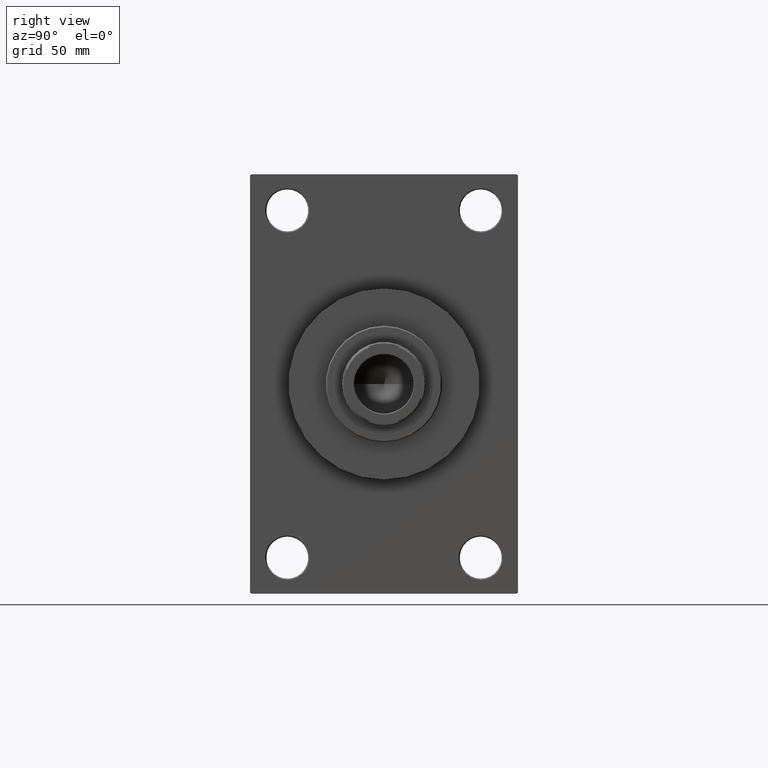
[diagram: clean part render]
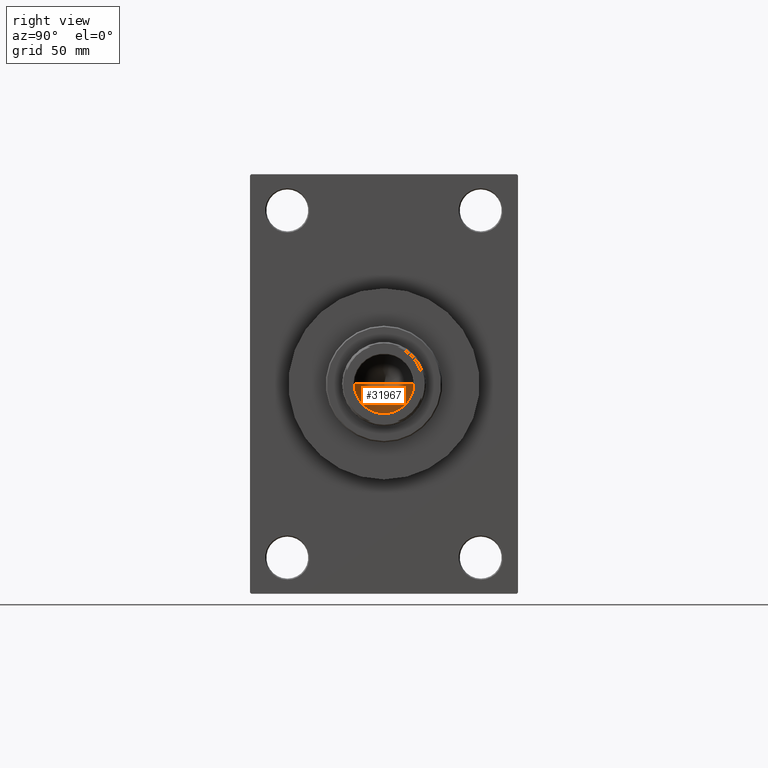
[diagram: same view with one face highlighted and labeled with its STEP entity id]
A machine part, right view. The second image highlights one B-rep face of the part: STEP entity #31967.
In plain terms, the highlighted conical surface has half-angle 59 deg.
Its self-contained STEP definition (entity closure, byte-faithful):
#47 = CIRCLE ( 'NONE', #31622, 12.74999999999998934 ) ;
#216 = VERTEX_POINT ( 'NONE', #38743 ) ;
#945 = VECTOR ( 'NONE', #3712, 1000.000000000000000 ) ;
#3712 = DIRECTION ( 'NONE',  ( 0.8571673007021117785, 0.000000000000000000, 0.5150380749100550437 ) ) ;
#9446 = DIRECTION ( 'NONE',  ( -0.8571673007021117785, 1.049727191138617956E-16, 0.5150380749100550437 ) ) ;
#16182 = EDGE_CURVE ( 'NONE', #216, #32063, #47, .T. ) ;
#16518 = ORIENTED_EDGE ( 'NONE', *, *, #16182, .T. ) ;
#17881 = CARTESIAN_POINT ( 'NONE',  ( 0.000000000000000000, 0.000000000000000000, 121.0000000000000142 ) ) ;
#21007 = VERTEX_POINT ( 'NONE', #42152 ) ;
#21275 = LINE ( 'NONE', #42953, #39548 ) ;
#22217 = DIRECTION ( 'NONE',  ( -0.000000000000000000, -0.000000000000000000, 1.000000000000000000 ) ) ;
#24035 = EDGE_CURVE ( 'NONE', #21007, #216, #26136, .T. ) ;
#26136 = LINE ( 'NONE', #43985, #945 ) ;
#26604 = CONICAL_SURFACE ( 'NONE', #30450, 12.74999999999998934, 1.029744258676653423 ) ;
#26883 = ORIENTED_EDGE ( 'NONE', *, *, #24035, .T. ) ;
#30450 = AXIS2_PLACEMENT_3D ( 'NONE', #45982, #42366, #31524 ) ;
#31285 = FACE_OUTER_BOUND ( 'NONE', #46728, .T. ) ;
#31524 = DIRECTION ( 'NONE',  ( 1.000000000000000000, 0.000000000000000000, 0.000000000000000000 ) ) ;
#31622 = AXIS2_PLACEMENT_3D ( 'NONE', #17881, #22217, #36902 ) ;
#31967 = ADVANCED_FACE ( 'NONE', ( #31285 ), #26604, .F. ) ;
#32063 = VERTEX_POINT ( 'NONE', #37985 ) ;
#36902 = DIRECTION ( 'NONE',  ( 1.000000000000000000, 0.000000000000000000, 0.000000000000000000 ) ) ;
#37985 = CARTESIAN_POINT ( 'NONE',  ( -12.74999999999998934, 1.561424668912873928E-15, 121.0000000000000142 ) ) ;
#38743 = CARTESIAN_POINT ( 'NONE',  ( 12.74999999999998934, 0.000000000000000000, 121.0000000000000142 ) ) ;
#39548 = VECTOR ( 'NONE', #9446, 1000.000000000000000 ) ;
#42152 = CARTESIAN_POINT ( 'NONE',  ( -1.410643066818227497E-14, 0.000000000000000000, 113.3390271073986071 ) ) ;
#42366 = DIRECTION ( 'NONE',  ( -0.000000000000000000, -0.000000000000000000, 1.000000000000000000 ) ) ;
#42953 = CARTESIAN_POINT ( 'NONE',  ( -12.74999999999998934, 1.561424668912873928E-15, 121.0000000000000142 ) ) ;
#43552 = EDGE_CURVE ( 'NONE', #21007, #32063, #21275, .T. ) ;
#43985 = CARTESIAN_POINT ( 'NONE',  ( 12.74999999999998934, 0.000000000000000000, 121.0000000000000142 ) ) ;
#44244 = ORIENTED_EDGE ( 'NONE', *, *, #43552, .F. ) ;
#45982 = CARTESIAN_POINT ( 'NONE',  ( 0.000000000000000000, 0.000000000000000000, 121.0000000000000142 ) ) ;
#46728 = EDGE_LOOP ( 'NONE', ( #44244, #26883, #16518 ) ) ;